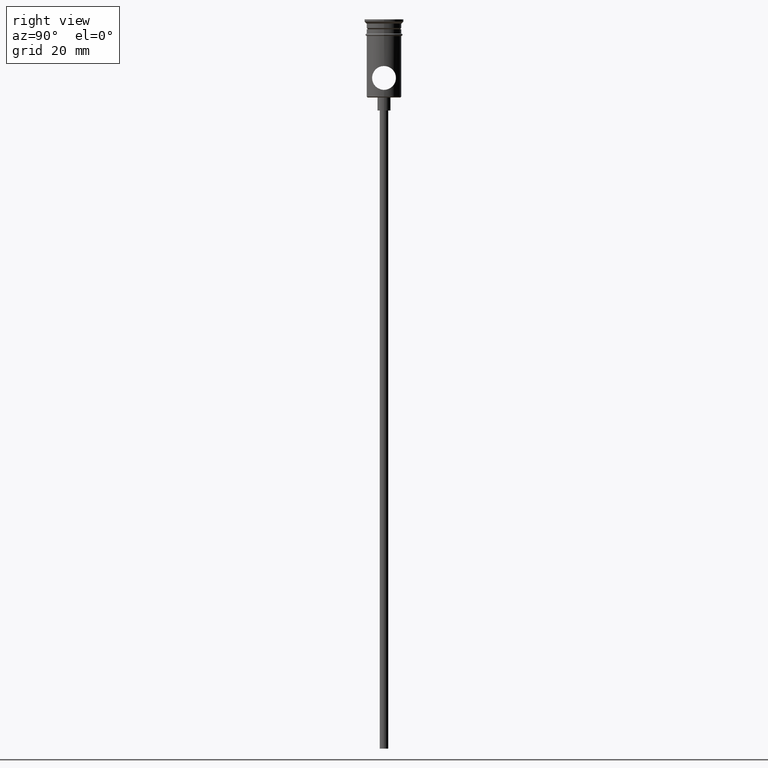
[diagram: clean part render]
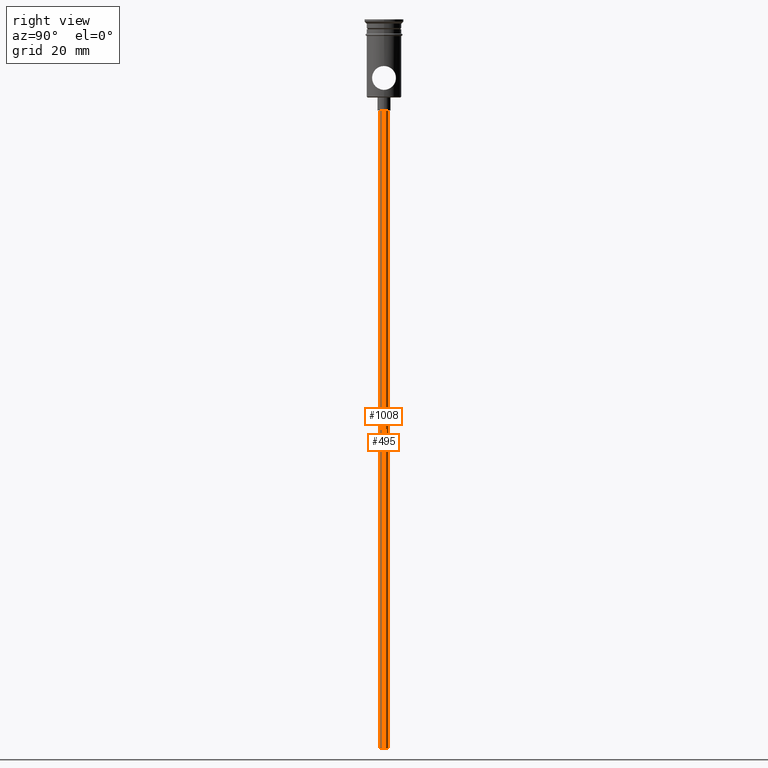
[diagram: same view with one multi-face feature highlighted, each face labeled with its STEP entity id]
A machine part, right view. The highlighted faces form ONE feature: a constant-radius fillet chain: 2 tangent blend faces with common blend radius 1 mm. The faces share edges in the B-rep.
Their STEP definitions:
[1] entity #1008 (Cylinder):
#31 = ORIENTED_EDGE ( 'NONE', *, *, #595, .T. ) ;
#78 = DIRECTION ( 'NONE',  ( -0.000000000000000000, -0.000000000000000000, 1.000000000000000000 ) ) ;
#118 = CARTESIAN_POINT ( 'NONE',  ( -0.9999999999999997780, 1.224646799147352961E-16, -167.9999999999999716 ) ) ;
#127 = CARTESIAN_POINT ( 'NONE',  ( -0.9999999999999997780, 1.224646799147352961E-16, -20.99999999999999645 ) ) ;
#197 = DIRECTION ( 'NONE',  ( 1.000000000000000000, 0.000000000000000000, 0.000000000000000000 ) ) ;
#201 = CARTESIAN_POINT ( 'NONE',  ( 0.000000000000000000, 0.000000000000000000, -20.99999999999999645 ) ) ;
#244 = CARTESIAN_POINT ( 'NONE',  ( 0.000000000000000000, 0.000000000000000000, -167.9999999999999716 ) ) ;
#291 = AXIS2_PLACEMENT_3D ( 'NONE', #1181, #78, #197 ) ;
#300 = EDGE_CURVE ( 'NONE', #1409, #911, #456, .T. ) ;
#346 = VECTOR ( 'NONE', #646, 1000.000000000000000 ) ;
#400 = EDGE_CURVE ( 'NONE', #1409, #1192, #1274, .T. ) ;
#456 = CIRCLE ( 'NONE', #533, 0.9999999999999997780 ) ;
#503 = ORIENTED_EDGE ( 'NONE', *, *, #300, .F. ) ;
#533 = AXIS2_PLACEMENT_3D ( 'NONE', #244, #540, #983 ) ;
#540 = DIRECTION ( 'NONE',  ( 0.000000000000000000, 0.000000000000000000, -1.000000000000000000 ) ) ;
#595 = EDGE_CURVE ( 'NONE', #1192, #700, #1373, .T. ) ;
#646 = DIRECTION ( 'NONE',  ( -0.000000000000000000, -0.000000000000000000, 1.000000000000000000 ) ) ;
#666 = ORIENTED_EDGE ( 'NONE', *, *, #1075, .F. ) ;
#680 = DIRECTION ( 'NONE',  ( -0.000000000000000000, -0.000000000000000000, 1.000000000000000000 ) ) ;
#700 = VERTEX_POINT ( 'NONE', #127 ) ;
#745 = FACE_OUTER_BOUND ( 'NONE', #955, .T. ) ;
#754 = CYLINDRICAL_SURFACE ( 'NONE', #291, 0.9999999999999997780 ) ;
#837 = ORIENTED_EDGE ( 'NONE', *, *, #400, .T. ) ;
#886 = LINE ( 'NONE', #118, #967 ) ;
#911 = VERTEX_POINT ( 'NONE', #985 ) ;
#955 = EDGE_LOOP ( 'NONE', ( #666, #503, #837, #31 ) ) ;
#967 = VECTOR ( 'NONE', #680, 1000.000000000000000 ) ;
#971 = DIRECTION ( 'NONE',  ( 0.000000000000000000, 0.000000000000000000, -1.000000000000000000 ) ) ;
#983 = DIRECTION ( 'NONE',  ( -1.000000000000000000, 0.000000000000000000, 0.000000000000000000 ) ) ;
#985 = CARTESIAN_POINT ( 'NONE',  ( -0.9999999999999997780, 1.224646799147352961E-16, -167.9999999999999716 ) ) ;
#1008 = ADVANCED_FACE ( 'NONE', ( #745 ), #754, .T. ) ;
#1075 = EDGE_CURVE ( 'NONE', #911, #700, #886, .T. ) ;
#1096 = AXIS2_PLACEMENT_3D ( 'NONE', #201, #971, #1176 ) ;
#1167 = CARTESIAN_POINT ( 'NONE',  ( 0.9999999999999997780, 0.000000000000000000, -20.99999999999999645 ) ) ;
#1176 = DIRECTION ( 'NONE',  ( -1.000000000000000000, 0.000000000000000000, 0.000000000000000000 ) ) ;
#1181 = CARTESIAN_POINT ( 'NONE',  ( 0.000000000000000000, 0.000000000000000000, -167.9999999999999716 ) ) ;
#1192 = VERTEX_POINT ( 'NONE', #1167 ) ;
#1274 = LINE ( 'NONE', #1286, #346 ) ;
#1286 = CARTESIAN_POINT ( 'NONE',  ( 0.9999999999999997780, 0.000000000000000000, -167.9999999999999716 ) ) ;
#1330 = CARTESIAN_POINT ( 'NONE',  ( 0.9999999999999997780, 0.000000000000000000, -167.9999999999999716 ) ) ;
#1373 = CIRCLE ( 'NONE', #1096, 0.9999999999999997780 ) ;
#1409 = VERTEX_POINT ( 'NONE', #1330 ) ;
[2] entity #495 (Cylinder):
#15 = EDGE_CURVE ( 'NONE', #911, #1409, #1006, .T. ) ;
#39 = ORIENTED_EDGE ( 'NONE', *, *, #947, .T. ) ;
#43 = AXIS2_PLACEMENT_3D ( 'NONE', #465, #1342, #1109 ) ;
#118 = CARTESIAN_POINT ( 'NONE',  ( -0.9999999999999997780, 1.224646799147352961E-16, -167.9999999999999716 ) ) ;
#127 = CARTESIAN_POINT ( 'NONE',  ( -0.9999999999999997780, 1.224646799147352961E-16, -20.99999999999999645 ) ) ;
#216 = ORIENTED_EDGE ( 'NONE', *, *, #400, .F. ) ;
#346 = VECTOR ( 'NONE', #646, 1000.000000000000000 ) ;
#400 = EDGE_CURVE ( 'NONE', #1409, #1192, #1274, .T. ) ;
#465 = CARTESIAN_POINT ( 'NONE',  ( 0.000000000000000000, 0.000000000000000000, -167.9999999999999716 ) ) ;
#495 = ADVANCED_FACE ( 'NONE', ( #682 ), #572, .T. ) ;
#572 = CYLINDRICAL_SURFACE ( 'NONE', #997, 0.9999999999999997780 ) ;
#640 = CARTESIAN_POINT ( 'NONE',  ( 0.000000000000000000, 0.000000000000000000, -20.99999999999999645 ) ) ;
#646 = DIRECTION ( 'NONE',  ( -0.000000000000000000, -0.000000000000000000, 1.000000000000000000 ) ) ;
#676 = ORIENTED_EDGE ( 'NONE', *, *, #1075, .T. ) ;
#680 = DIRECTION ( 'NONE',  ( -0.000000000000000000, -0.000000000000000000, 1.000000000000000000 ) ) ;
#682 = FACE_OUTER_BOUND ( 'NONE', #853, .T. ) ;
#690 = DIRECTION ( 'NONE',  ( 1.000000000000000000, 0.000000000000000000, 0.000000000000000000 ) ) ;
#700 = VERTEX_POINT ( 'NONE', #127 ) ;
#730 = DIRECTION ( 'NONE',  ( -1.000000000000000000, 0.000000000000000000, 0.000000000000000000 ) ) ;
#853 = EDGE_LOOP ( 'NONE', ( #1228, #676, #39, #216 ) ) ;
#886 = LINE ( 'NONE', #118, #967 ) ;
#890 = AXIS2_PLACEMENT_3D ( 'NONE', #640, #1197, #730 ) ;
#911 = VERTEX_POINT ( 'NONE', #985 ) ;
#947 = EDGE_CURVE ( 'NONE', #700, #1192, #1320, .T. ) ;
#967 = VECTOR ( 'NONE', #680, 1000.000000000000000 ) ;
#985 = CARTESIAN_POINT ( 'NONE',  ( -0.9999999999999997780, 1.224646799147352961E-16, -167.9999999999999716 ) ) ;
#997 = AXIS2_PLACEMENT_3D ( 'NONE', #1019, #1341, #690 ) ;
#1006 = CIRCLE ( 'NONE', #43, 0.9999999999999997780 ) ;
#1019 = CARTESIAN_POINT ( 'NONE',  ( 0.000000000000000000, 0.000000000000000000, -167.9999999999999716 ) ) ;
#1075 = EDGE_CURVE ( 'NONE', #911, #700, #886, .T. ) ;
#1109 = DIRECTION ( 'NONE',  ( -1.000000000000000000, 0.000000000000000000, 0.000000000000000000 ) ) ;
#1167 = CARTESIAN_POINT ( 'NONE',  ( 0.9999999999999997780, 0.000000000000000000, -20.99999999999999645 ) ) ;
#1192 = VERTEX_POINT ( 'NONE', #1167 ) ;
#1197 = DIRECTION ( 'NONE',  ( 0.000000000000000000, 0.000000000000000000, -1.000000000000000000 ) ) ;
#1228 = ORIENTED_EDGE ( 'NONE', *, *, #15, .F. ) ;
#1274 = LINE ( 'NONE', #1286, #346 ) ;
#1286 = CARTESIAN_POINT ( 'NONE',  ( 0.9999999999999997780, 0.000000000000000000, -167.9999999999999716 ) ) ;
#1320 = CIRCLE ( 'NONE', #890, 0.9999999999999997780 ) ;
#1330 = CARTESIAN_POINT ( 'NONE',  ( 0.9999999999999997780, 0.000000000000000000, -167.9999999999999716 ) ) ;
#1341 = DIRECTION ( 'NONE',  ( -0.000000000000000000, -0.000000000000000000, 1.000000000000000000 ) ) ;
#1342 = DIRECTION ( 'NONE',  ( 0.000000000000000000, 0.000000000000000000, -1.000000000000000000 ) ) ;
#1409 = VERTEX_POINT ( 'NONE', #1330 ) ;